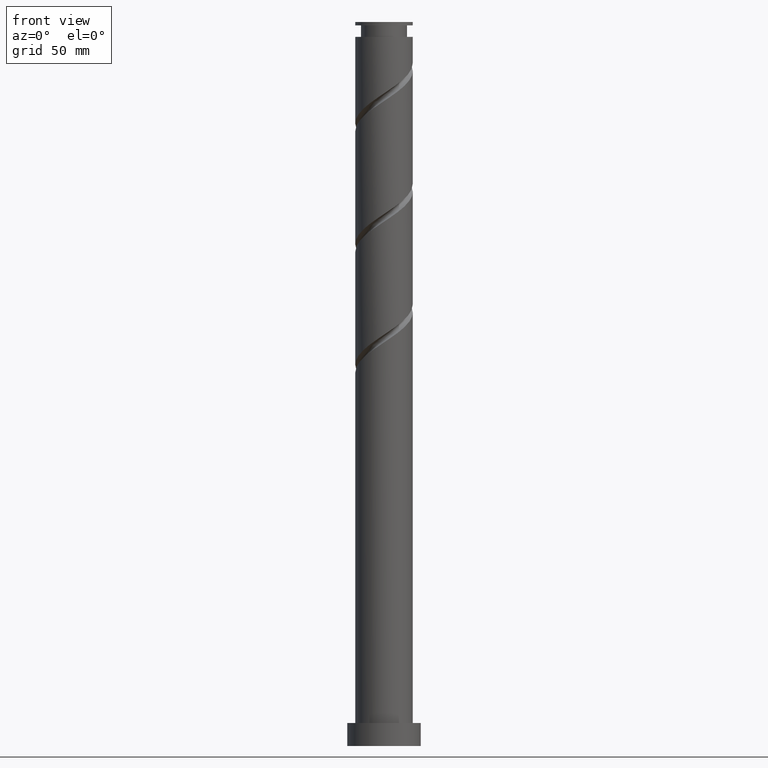
[diagram: clean part render]
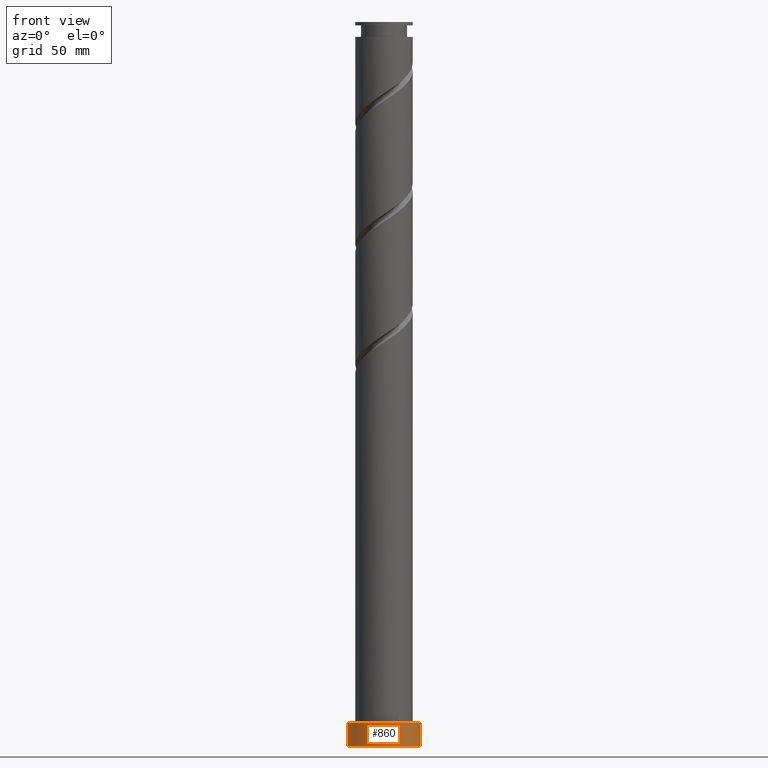
[diagram: same view with one face highlighted and labeled with its STEP entity id]
A machine part, front view. The second image highlights one B-rep face of the part: STEP entity #860.
In plain terms, the highlighted cylindrical surface (partial cylindrical patch) has radius 16 mm, axis along (-0, -0, -1).
Its self-contained STEP definition (entity closure, byte-faithful):
#15 = ORIENTED_EDGE ( 'NONE', *, *, #362, .T. ) ;
#50 = LINE ( 'NONE', #338, #1244 ) ;
#65 = CIRCLE ( 'NONE', #312, 16.00000000000000000 ) ;
#68 = DIRECTION ( 'NONE',  ( 0.000000000000000000, 0.000000000000000000, 1.000000000000000000 ) ) ;
#151 = DIRECTION ( 'NONE',  ( 1.000000000000000000, 0.000000000000000000, 0.000000000000000000 ) ) ;
#312 = AXIS2_PLACEMENT_3D ( 'NONE', #1761, #873, #151 ) ;
#319 = CARTESIAN_POINT ( 'NONE',  ( 0.000000000000000000, 0.000000000000000000, 10.00000000000000000 ) ) ;
#338 = CARTESIAN_POINT ( 'NONE',  ( 16.00000000000000000, 1.959434878635765131E-15, 10.00000000000000000 ) ) ;
#362 = EDGE_CURVE ( 'NONE', #728, #867, #1821, .T. ) ;
#493 = CARTESIAN_POINT ( 'NONE',  ( 16.00000000000000000, 1.959434878635765131E-15, 10.00000000000000000 ) ) ;
#529 = ORIENTED_EDGE ( 'NONE', *, *, #1402, .F. ) ;
#536 = CARTESIAN_POINT ( 'NONE',  ( -16.00000000000000000, 0.000000000000000000, 0.000000000000000000 ) ) ;
#639 = ORIENTED_EDGE ( 'NONE', *, *, #1695, .T. ) ;
#714 = EDGE_CURVE ( 'NONE', #1765, #1137, #50, .T. ) ;
#728 = VERTEX_POINT ( 'NONE', #1501 ) ;
#765 = DIRECTION ( 'NONE',  ( -0.000000000000000000, -0.000000000000000000, -1.000000000000000000 ) ) ;
#860 = ADVANCED_FACE ( 'NONE', ( #1059 ), #1651, .T. ) ;
#866 = ORIENTED_EDGE ( 'NONE', *, *, #714, .F. ) ;
#867 = VERTEX_POINT ( 'NONE', #536 ) ;
#873 = DIRECTION ( 'NONE',  ( 0.000000000000000000, 0.000000000000000000, 1.000000000000000000 ) ) ;
#876 = VECTOR ( 'NONE', #1673, 1000.000000000000000 ) ;
#1059 = FACE_OUTER_BOUND ( 'NONE', #1798, .T. ) ;
#1080 = CARTESIAN_POINT ( 'NONE',  ( -16.00000000000000000, 0.000000000000000000, 10.00000000000000000 ) ) ;
#1137 = VERTEX_POINT ( 'NONE', #1462 ) ;
#1154 = AXIS2_PLACEMENT_3D ( 'NONE', #1554, #68, #1420 ) ;
#1244 = VECTOR ( 'NONE', #765, 1000.000000000000000 ) ;
#1280 = CIRCLE ( 'NONE', #1154, 16.00000000000000000 ) ;
#1402 = EDGE_CURVE ( 'NONE', #728, #1765, #1280, .T. ) ;
#1420 = DIRECTION ( 'NONE',  ( 1.000000000000000000, 0.000000000000000000, 0.000000000000000000 ) ) ;
#1462 = CARTESIAN_POINT ( 'NONE',  ( 16.00000000000000000, 1.959434878635765131E-15, 0.000000000000000000 ) ) ;
#1501 = CARTESIAN_POINT ( 'NONE',  ( -16.00000000000000000, 0.000000000000000000, 10.00000000000000000 ) ) ;
#1554 = CARTESIAN_POINT ( 'NONE',  ( 0.000000000000000000, 0.000000000000000000, 10.00000000000000000 ) ) ;
#1584 = DIRECTION ( 'NONE',  ( -0.000000000000000000, -0.000000000000000000, -1.000000000000000000 ) ) ;
#1651 = CYLINDRICAL_SURFACE ( 'NONE', #1799, 16.00000000000000000 ) ;
#1673 = DIRECTION ( 'NONE',  ( -0.000000000000000000, -0.000000000000000000, -1.000000000000000000 ) ) ;
#1695 = EDGE_CURVE ( 'NONE', #867, #1137, #65, .T. ) ;
#1761 = CARTESIAN_POINT ( 'NONE',  ( 0.000000000000000000, 0.000000000000000000, 0.000000000000000000 ) ) ;
#1765 = VERTEX_POINT ( 'NONE', #493 ) ;
#1798 = EDGE_LOOP ( 'NONE', ( #866, #529, #15, #639 ) ) ;
#1799 = AXIS2_PLACEMENT_3D ( 'NONE', #319, #1584, #1881 ) ;
#1821 = LINE ( 'NONE', #1080, #876 ) ;
#1881 = DIRECTION ( 'NONE',  ( -1.000000000000000000, 0.000000000000000000, 0.000000000000000000 ) ) ;